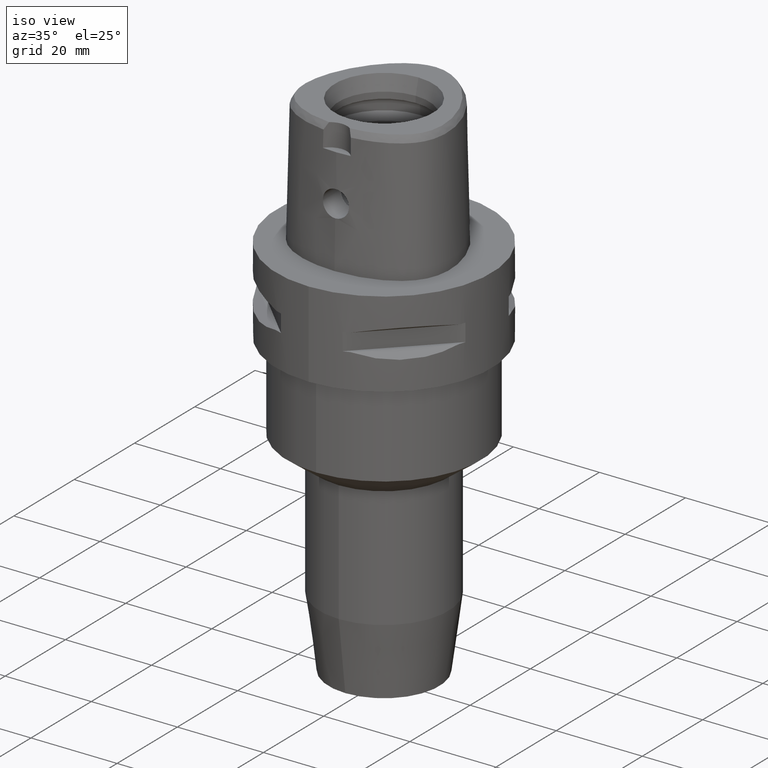
[diagram: clean part render]
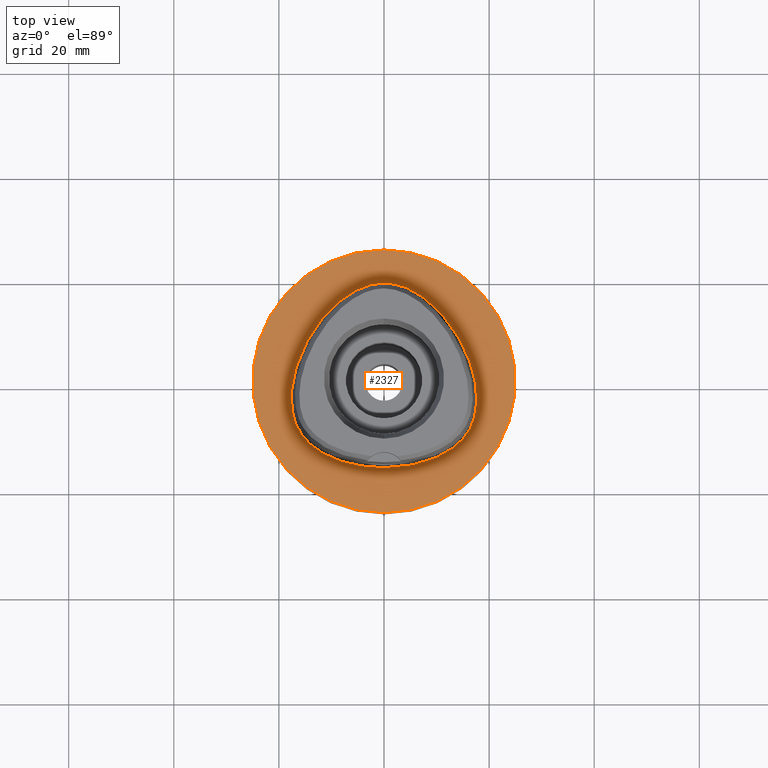
[diagram: tour spotlight — one face highlighted and labeled with its STEP entity id]
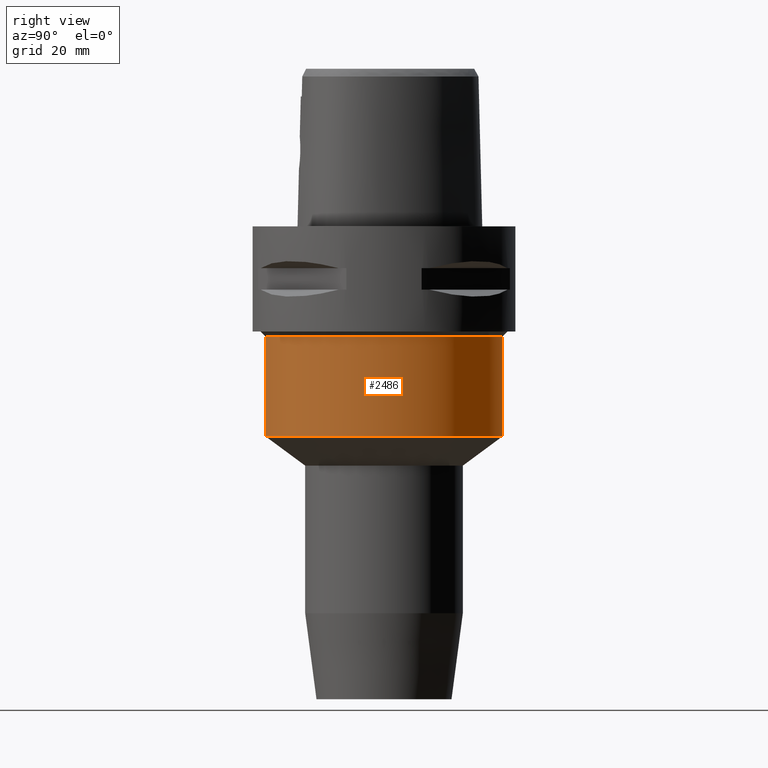
[diagram: tour spotlight — one face highlighted and labeled with its STEP entity id]
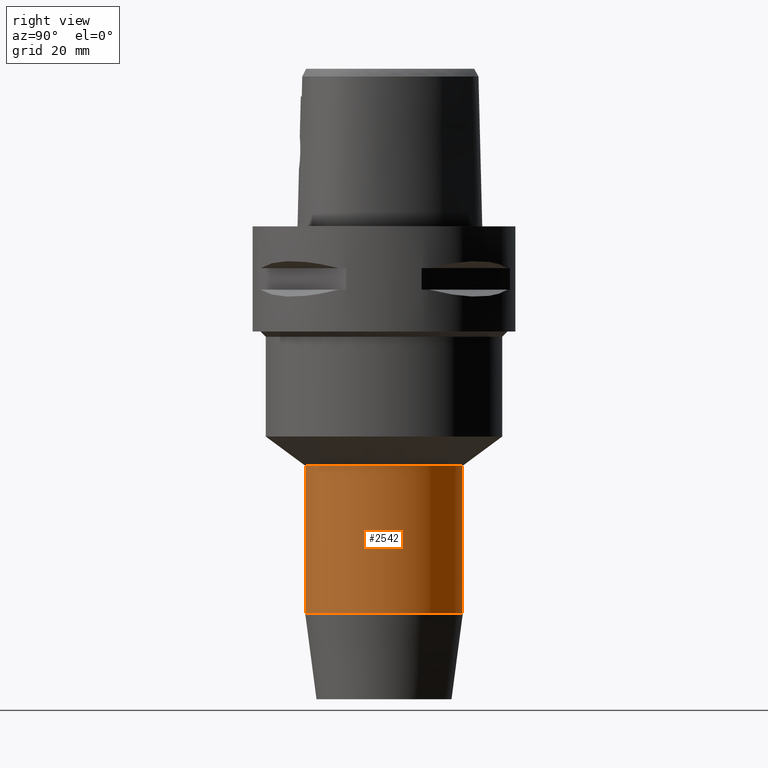
[diagram: tour spotlight — one face highlighted and labeled with its STEP entity id]
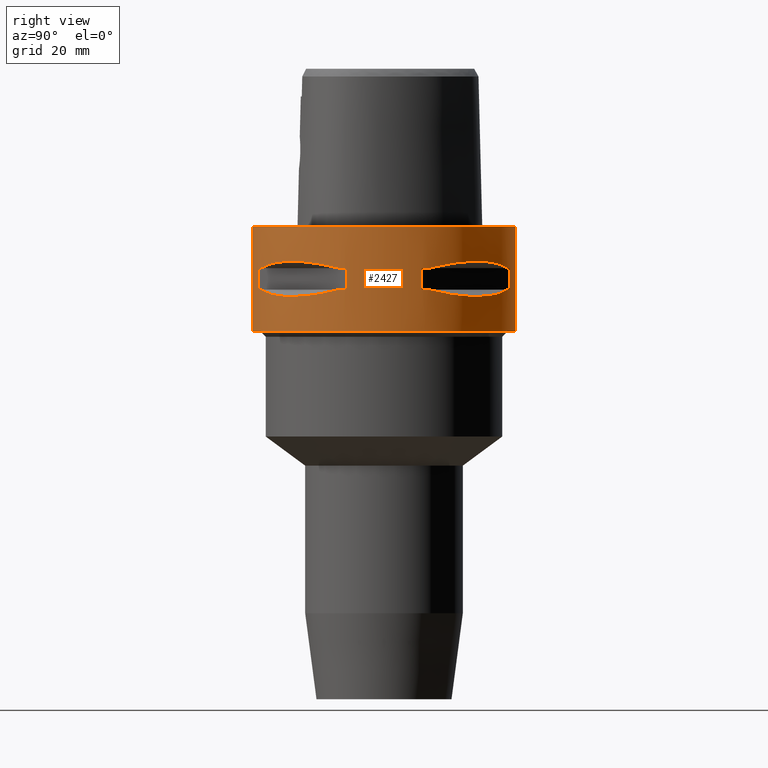
[diagram: tour spotlight — one face highlighted and labeled with its STEP entity id]
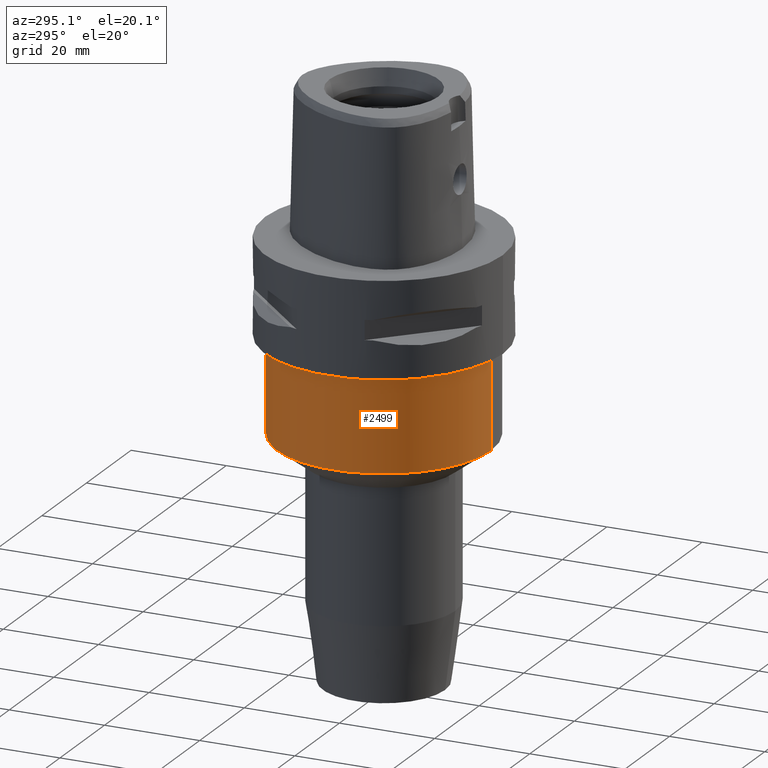
[diagram: tour spotlight — one face highlighted and labeled with its STEP entity id]
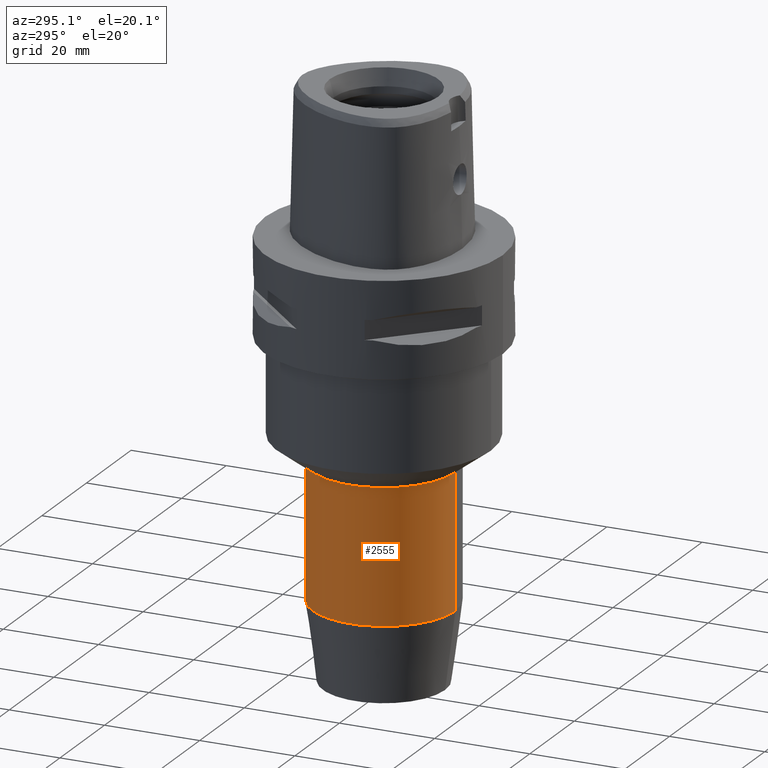
[diagram: tour spotlight — one face highlighted and labeled with its STEP entity id]
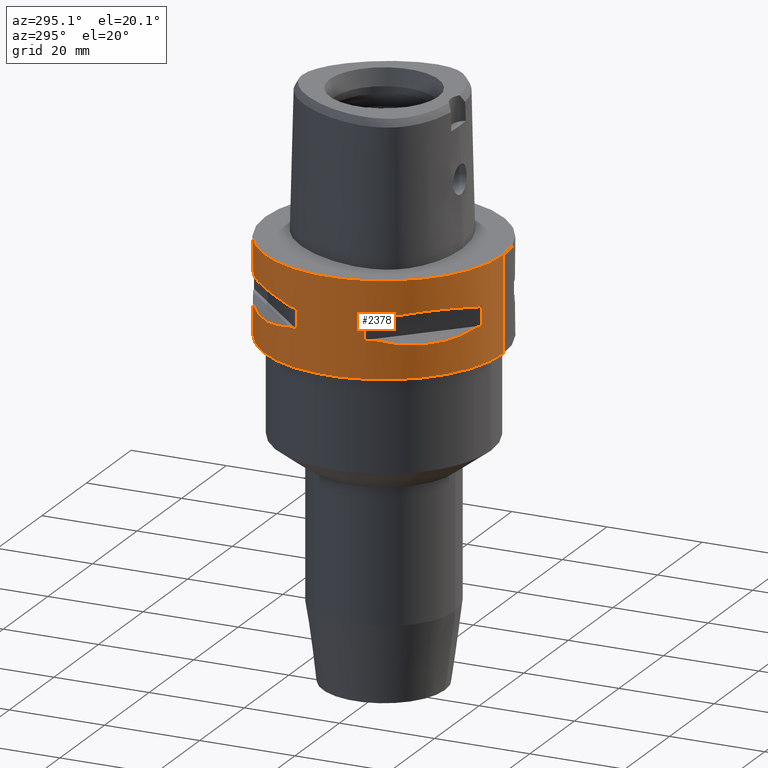
[diagram: tour spotlight — one face highlighted and labeled with its STEP entity id]
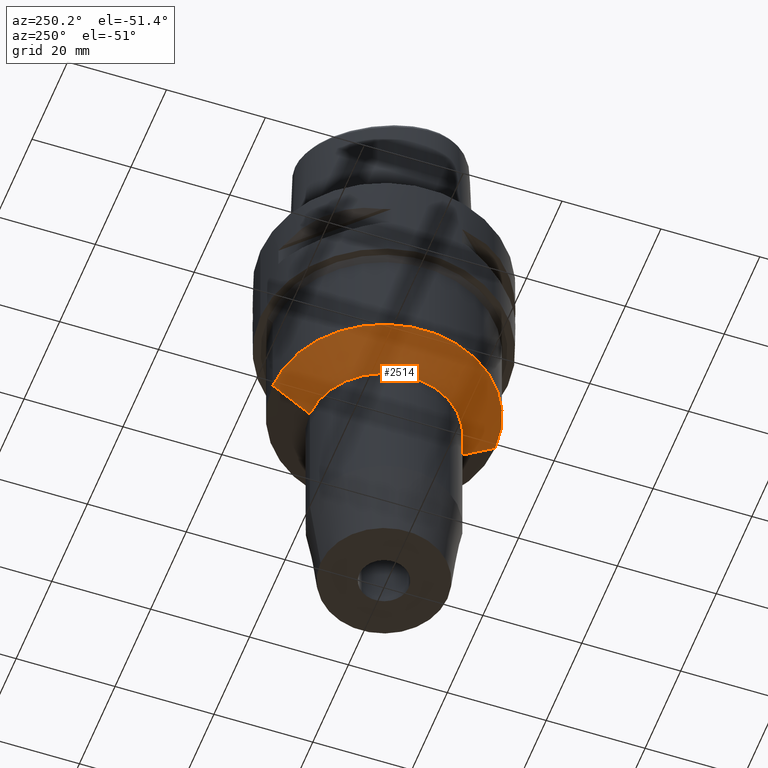
[diagram: tour spotlight — one face highlighted and labeled with its STEP entity id]
A machine part: a face-by-face anatomy tour. The part has 71 B-rep faces; the first image is the clean iso view, then the 8 largest visible faces are spotlighted one at a time (largest first), each with its STEP entity span.

Face 1 — top view, entity #2327. In plain terms, the highlighted planar face has unit normal (0, 0, -1).
Definition (entity closure, byte-faithful):
#276=CARTESIAN_POINT('',(0.E0,1.279755905109E-14,0.E0));
#277=DIRECTION('',(0.E0,0.E0,-1.E0));
#278=DIRECTION('',(0.E0,-1.E0,0.E0));
#279=AXIS2_PLACEMENT_3D('',#276,#277,#278);
#284=CARTESIAN_POINT('',(0.E0,1.279755905109E-14,0.E0));
#285=DIRECTION('',(0.E0,0.E0,-1.E0));
#286=DIRECTION('',(0.E0,1.E0,0.E0));
#287=AXIS2_PLACEMENT_3D('',#284,#285,#286);
#292=CARTESIAN_POINT('',(-1.878577622163E-11,-1.6455E1,1.714184350021E-13));
#293=CARTESIAN_POINT('',(7.520544970775E-1,-1.6455E1,1.714184350021E-13));
#294=CARTESIAN_POINT('',(2.228860586122E0,-1.639617223440E1,
-7.955557254887E-14));
#295=CARTESIAN_POINT('',(4.393897766251E0,-1.613829788532E1,
2.131685141787E-14));
#296=CARTESIAN_POINT('',(6.413582333440E0,-1.573029168066E1,0.E0));
#297=CARTESIAN_POINT('',(8.250040745429E0,-1.519983477269E1,0.E0));
#298=CARTESIAN_POINT('',(9.881537619360E0,-1.457551877177E1,0.E0));
#299=CARTESIAN_POINT('',(1.130626230784E1,-1.388335410763E1,0.E0));
#300=CARTESIAN_POINT('',(1.253549220256E1,-1.314343262176E1,0.E0));
#301=CARTESIAN_POINT('',(1.358591729990E1,-1.237044839573E1,0.E0));
#302=CARTESIAN_POINT('',(1.447686110690E1,-1.157371724318E1,0.E0));
#303=CARTESIAN_POINT('',(1.522827962908E1,-1.075540821107E1,0.E0));
#304=CARTESIAN_POINT('',(1.584997981983E1,-9.925219598291E0,0.E0));
#305=CARTESIAN_POINT('',(1.636712046663E1,-9.064646374572E0,0.E0));
#306=CARTESIAN_POINT('',(1.680111583863E1,-8.137770631661E0,0.E0));
#307=CARTESIAN_POINT('',(1.716028823178E1,-7.114005583873E0,0.E0));
#308=CARTESIAN_POINT('',(1.743519625486E1,-5.982733699389E0,0.E0));
#309=CARTESIAN_POINT('',(1.761454247605E1,-4.729703139032E0,0.E0));
#310=CARTESIAN_POINT('',(1.768211704686E1,-3.341959287542E0,0.E0));
#311=CARTESIAN_POINT('',(1.761782930036E1,-1.810101179913E0,0.E0));
#312=CARTESIAN_POINT('',(1.739895033698E1,-1.317112682474E-1,0.E0));
#313=CARTESIAN_POINT('',(1.700294340726E1,1.683923078633E0,0.E0));
#314=CARTESIAN_POINT('',(1.641230603512E1,3.610562547694E0,0.E0));
#315=CARTESIAN_POINT('',(1.562023043524E1,5.603127656776E0,0.E0));
#316=CARTESIAN_POINT('',(1.463711141431E1,7.597430653142E0,0.E0));
#317=CARTESIAN_POINT('',(1.348989830127E1,9.523895696650E0,0.E0));
#318=CARTESIAN_POINT('',(1.221667832768E1,1.132146060739E1,0.E0));
#319=CARTESIAN_POINT('',(1.086683506859E1,1.293619870250E1,0.E0));
#320=CARTESIAN_POINT('',(9.489324918269E0,1.433502117364E1,0.E0));
#321=CARTESIAN_POINT('',(8.122628878486E0,1.550883912672E1,0.E0));
#322=CARTESIAN_POINT('',(6.794297479735E0,1.646457467801E1,0.E0));
#323=CARTESIAN_POINT('',(5.519689172867E0,1.722004023709E1,0.E0));
#324=CARTESIAN_POINT('',(4.305066834601E0,1.779701779539E1,0.E0));
#325=CARTESIAN_POINT('',(3.150397822612E0,1.821724629736E1,0.E0));
#326=CARTESIAN_POINT('',(2.051175307320E0,1.850000862827E1,2.116958474140E-14));
#327=CARTESIAN_POINT('',(1.002672465136E0,1.866092948852E1,
-7.900596583005E-14));
#328=CARTESIAN_POINT('',(3.294798461533E-1,1.869499999998E1,
1.702341971092E-13));
#329=CARTESIAN_POINT('',(7.755984887578E-11,1.869499999998E1,
1.702341971092E-13));
#334=CARTESIAN_POINT('',(7.755984887578E-11,1.869499999998E1,
1.702341971092E-13));
#335=CARTESIAN_POINT('',(-3.295759186931E-1,1.869499999998E1,
1.702341971092E-13));
#336=CARTESIAN_POINT('',(-1.002941795035E0,1.866091233063E1,
-7.900596583005E-14));
#337=CARTESIAN_POINT('',(-2.051732925927E0,1.849989913349E1,
2.116958474140E-14));
#338=CARTESIAN_POINT('',(-3.151016817687E0,1.821705721996E1,0.E0));
#339=CARTESIAN_POINT('',(-4.305903382544E0,1.779667629778E1,0.E0));
#340=CARTESIAN_POINT('',(-5.520827674724E0,1.721944707481E1,0.E0));
#341=CARTESIAN_POINT('',(-6.795867983990E0,1.646356234537E1,0.E0));
#342=CARTESIAN_POINT('',(-8.124582525850E0,1.550731834414E1,0.E0));
#343=CARTESIAN_POINT('',(-9.491675783515E0,1.433284227771E1,0.E0));
#344=CARTESIAN_POINT('',(-1.086945255546E1,1.293333260558E1,0.E0));
#345=CARTESIAN_POINT('',(-1.221944110055E1,1.131788308487E1,0.E0));
#346=CARTESIAN_POINT('',(-1.349253657379E1,9.519855402023E0,0.E0));
#347=CARTESIAN_POINT('',(-1.463965089053E1,7.592770024477E0,0.E0));
#348=CARTESIAN_POINT('',(-1.562233731693E1,5.598375856198E0,0.E0));
#349=CARTESIAN_POINT('',(-1.641389016506E1,3.606034768388E0,0.E0));
#350=CARTESIAN_POINT('',(-1.700401205855E1,1.679814926123E0,0.E0));
#351=CARTESIAN_POINT('',(-1.739956074894E1,-1.352982755759E-1,0.E0));
#352=CARTESIAN_POINT('',(-1.761806726740E1,-1.812956980727E0,0.E0));
#353=CARTESIAN_POINT('',(-1.768210655685E1,-3.344559877090E0,0.E0));
#354=CARTESIAN_POINT('',(-1.761432762350E1,-4.731965011588E0,0.E0));
#355=CARTESIAN_POINT('',(-1.743477761552E1,-5.984854138534E0,0.E0));
#356=CARTESIAN_POINT('',(-1.715975078674E1,-7.115992938261E0,0.E0));
#357=CARTESIAN_POINT('',(-1.679976177308E1,-8.141029809616E0,0.E0));
#358=CARTESIAN_POINT('',(-1.636704456147E1,-9.064438463957E0,0.E0));
#359=CARTESIAN_POINT('',(-1.585200386670E1,-9.922103224333E0,0.E0));
#360=CARTESIAN_POINT('',(-1.523087197253E1,-1.075232462852E1,0.E0));
#361=CARTESIAN_POINT('',(-1.447948051682E1,-1.157113099391E1,0.E0));
#362=CARTESIAN_POINT('',(-1.358925530666E1,-1.236773986121E1,0.E0));
#363=CARTESIAN_POINT('',(-1.253889987658E1,-1.314117755696E1,0.E0));
#364=CARTESIAN_POINT('',(-1.130992361527E1,-1.388138756268E1,0.E0));
#365=CARTESIAN_POINT('',(-9.884823482977E0,-1.457412199330E1,0.E0));
#366=CARTESIAN_POINT('',(-8.253027961528E0,-1.519886051434E1,0.E0));
#367=CARTESIAN_POINT('',(-6.415740149371E0,-1.572979209410E1,0.E0));
#368=CARTESIAN_POINT('',(-4.395375053772E0,-1.613808320054E1,
2.131685141787E-14));
#369=CARTESIAN_POINT('',(-2.229510005853E0,-1.639614206733E1,
-7.955557254887E-14));
#370=CARTESIAN_POINT('',(-7.522639795559E-1,-1.6455E1,1.714184350021E-13));
#371=CARTESIAN_POINT('',(-1.878577622163E-11,-1.6455E1,1.714184350021E-13));
#1536=VERTEX_POINT('',#334);
#1537=VERTEX_POINT('',#371);
#1542=CARTESIAN_POINT('',(0.E0,-2.5E1,0.E0));
#1543=CARTESIAN_POINT('',(0.E0,2.5E1,0.E0));
#1544=VERTEX_POINT('',#1542);
#1545=VERTEX_POINT('',#1543);
#2311=CARTESIAN_POINT('',(0.E0,1.224646799147E-14,0.E0));
#2312=DIRECTION('',(0.E0,0.E0,-1.E0));
#2313=DIRECTION('',(0.E0,-1.E0,0.E0));
#2314=AXIS2_PLACEMENT_3D('',#2311,#2312,#2313);
#2315=PLANE('',#2314);
#2317=ORIENTED_EDGE('',*,*,#2316,.T.);
#2319=ORIENTED_EDGE('',*,*,#2318,.T.);
#2320=EDGE_LOOP('',(#2317,#2319));
#2321=FACE_OUTER_BOUND('',#2320,.F.);
#2323=ORIENTED_EDGE('',*,*,#2322,.T.);
#2324=ORIENTED_EDGE('',*,*,#2294,.T.);
#2325=EDGE_LOOP('',(#2323,#2324));
#2326=FACE_BOUND('',#2325,.F.);
#280=CIRCLE('',#279,2.5E1);
#288=CIRCLE('',#287,2.5E1);
#330=B_SPLINE_CURVE_WITH_KNOTS('',3,(#292,#293,#294,#295,#296,#297,#298,#299,
#300,#301,#302,#303,#304,#305,#306,#307,#308,#309,#310,#311,#312,#313,#314,#315,
#316,#317,#318,#319,#320,#321,#322,#323,#324,#325,#326,#327,#328,#329),
.UNSPECIFIED.,.F.,.F.,(4,1,1,1,1,1,1,1,1,1,1,1,1,1,1,1,1,1,1,1,1,1,1,1,1,1,1,1,
1,1,1,1,1,1,1,4),(0.E0,2.857142857143E-2,5.714285714286E-2,8.571428571429E-2,
1.142857142857E-1,1.428571428571E-1,1.714285714286E-1,2.E-1,2.285714285714E-1,
2.571428571429E-1,2.857142857143E-1,3.142857142857E-1,3.428571428571E-1,
3.714285714286E-1,4.E-1,4.285714285714E-1,4.571428571429E-1,4.857142857143E-1,
5.142857142857E-1,5.428571428571E-1,5.714285714286E-1,6.E-1,6.285714285714E-1,
6.571428571429E-1,6.857142857143E-1,7.142857142857E-1,7.428571428571E-1,
7.714285714286E-1,8.E-1,8.285714285714E-1,8.571428571429E-1,8.857142857143E-1,
9.142857142857E-1,9.428571428571E-1,9.714285714286E-1,1.E0),.UNSPECIFIED.);
#372=B_SPLINE_CURVE_WITH_KNOTS('',3,(#334,#335,#336,#337,#338,#339,#340,#341,
#342,#343,#344,#345,#346,#347,#348,#349,#350,#351,#352,#353,#354,#355,#356,#357,
#358,#359,#360,#361,#362,#363,#364,#365,#366,#367,#368,#369,#370,#371),
.UNSPECIFIED.,.F.,.F.,(4,1,1,1,1,1,1,1,1,1,1,1,1,1,1,1,1,1,1,1,1,1,1,1,1,1,1,1,
1,1,1,1,1,1,1,4),(0.E0,2.857142857143E-2,5.714285714286E-2,8.571428571429E-2,
1.142857142857E-1,1.428571428571E-1,1.714285714286E-1,2.E-1,2.285714285714E-1,
2.571428571429E-1,2.857142857143E-1,3.142857142857E-1,3.428571428571E-1,
3.714285714286E-1,4.E-1,4.285714285714E-1,4.571428571429E-1,4.857142857143E-1,
5.142857142857E-1,5.428571428571E-1,5.714285714286E-1,6.E-1,6.285714285714E-1,
6.571428571429E-1,6.857142857143E-1,7.142857142857E-1,7.428571428571E-1,
7.714285714286E-1,8.E-1,8.285714285714E-1,8.571428571429E-1,8.857142857143E-1,
9.142857142857E-1,9.428571428571E-1,9.714285714286E-1,1.E0),.UNSPECIFIED.);
#2294=EDGE_CURVE('',#1536,#1537,#372,.T.);
#2316=EDGE_CURVE('',#1544,#1545,#280,.T.);
#2318=EDGE_CURVE('',#1545,#1544,#288,.T.);
#2322=EDGE_CURVE('',#1537,#1536,#330,.T.);
#2327=ADVANCED_FACE('',(#2321,#2326),#2315,.F.);

Face 2 — right view, entity #2486. In plain terms, the highlighted cylindrical surface (partial cylindrical patch) has radius 22.5 mm, axis along (0, 0, -1).
Definition (entity closure, byte-faithful):
#544=CARTESIAN_POINT('',(0.E0,0.E0,-2.1E1));
#545=DIRECTION('',(0.E0,0.E0,-1.E0));
#546=DIRECTION('',(0.E0,1.E0,0.E0));
#547=AXIS2_PLACEMENT_3D('',#544,#545,#546);
#552=DIRECTION('',(0.E0,7.741231679298E-14,-1.E0));
#553=VECTOR('',#552,1.899986363871E1);
#554=CARTESIAN_POINT('',(0.E0,2.25E1,-2.1E1));
#555=LINE('',#554,#553);
#559=DIRECTION('',(0.E0,-7.741231679298E-14,-1.E0));
#560=VECTOR('',#559,1.899986363871E1);
#561=CARTESIAN_POINT('',(0.E0,-2.25E1,-2.1E1));
#562=LINE('',#561,#560);
#604=CARTESIAN_POINT('',(0.E0,0.E0,-3.999986363871E1));
#605=DIRECTION('',(0.E0,0.E0,1.E0));
#606=DIRECTION('',(0.E0,-1.E0,0.E0));
#607=AXIS2_PLACEMENT_3D('',#604,#605,#606);
#1606=CARTESIAN_POINT('',(0.E0,2.25E1,-2.1E1));
#1607=VERTEX_POINT('',#1606);
#1608=CARTESIAN_POINT('',(0.E0,-2.25E1,-2.1E1));
#1609=VERTEX_POINT('',#1608);
#1610=CARTESIAN_POINT('',(0.E0,2.25E1,-3.999986363871E1));
#1611=VERTEX_POINT('',#1610);
#1612=CARTESIAN_POINT('',(0.E0,-2.25E1,-3.999986363871E1));
#1613=VERTEX_POINT('',#1612);
#2472=CARTESIAN_POINT('',(0.E0,1.279755905109E-14,4.5E0));
#2473=DIRECTION('',(0.E0,0.E0,-1.E0));
#2474=DIRECTION('',(0.E0,-1.E0,0.E0));
#2475=AXIS2_PLACEMENT_3D('',#2472,#2473,#2474);
#2476=CYLINDRICAL_SURFACE('',#2475,2.25E1);
#2478=ORIENTED_EDGE('',*,*,#2477,.T.);
#2480=ORIENTED_EDGE('',*,*,#2479,.F.);
#2482=ORIENTED_EDGE('',*,*,#2481,.F.);
#2483=ORIENTED_EDGE('',*,*,#2465,.F.);
#2484=EDGE_LOOP('',(#2478,#2480,#2482,#2483));
#2485=FACE_OUTER_BOUND('',#2484,.F.);
#548=CIRCLE('',#547,2.25E1);
#608=CIRCLE('',#607,2.25E1);
#2465=EDGE_CURVE('',#1607,#1609,#548,.T.);
#2477=EDGE_CURVE('',#1607,#1611,#555,.T.);
#2479=EDGE_CURVE('',#1613,#1611,#608,.T.);
#2481=EDGE_CURVE('',#1609,#1613,#562,.T.);
#2486=ADVANCED_FACE('',(#2485),#2476,.T.);

Face 3 — right view, entity #2542. In plain terms, the highlighted cylindrical surface (partial cylindrical patch) has radius 15 mm, axis along (0, 0, -1).
Definition (entity closure, byte-faithful):
#596=CARTESIAN_POINT('',(0.E0,0.E0,-4.5535E1));
#597=DIRECTION('',(0.E0,0.E0,-1.E0));
#598=DIRECTION('',(0.E0,1.E0,0.E0));
#599=AXIS2_PLACEMENT_3D('',#596,#597,#598);
#612=DIRECTION('',(0.E0,-1.668893513746E-14,-1.E0));
#613=VECTOR('',#612,2.809994776413E1);
#614=CARTESIAN_POINT('',(0.E0,1.5E1,-4.5535E1));
#615=LINE('',#614,#613);
#619=DIRECTION('',(0.E0,1.668893513746E-14,-1.E0));
#620=VECTOR('',#619,2.809994776413E1);
#621=CARTESIAN_POINT('',(0.E0,-1.5E1,-4.5535E1));
#622=LINE('',#621,#620);
#648=CARTESIAN_POINT('',(0.E0,0.E0,-7.363494776413E1));
#649=DIRECTION('',(0.E0,0.E0,1.E0));
#650=DIRECTION('',(0.E0,-1.E0,0.E0));
#651=AXIS2_PLACEMENT_3D('',#648,#649,#650);
#1614=CARTESIAN_POINT('',(0.E0,1.5E1,-4.5535E1));
#1615=VERTEX_POINT('',#1614);
#1616=CARTESIAN_POINT('',(0.E0,-1.5E1,-4.5535E1));
#1617=VERTEX_POINT('',#1616);
#1618=CARTESIAN_POINT('',(0.E0,1.5E1,-7.363494776413E1));
#1619=VERTEX_POINT('',#1618);
#1620=CARTESIAN_POINT('',(0.E0,-1.5E1,-7.363494776413E1));
#1621=VERTEX_POINT('',#1620);
#2528=CARTESIAN_POINT('',(0.E0,1.279755905109E-14,4.5E0));
#2529=DIRECTION('',(0.E0,0.E0,-1.E0));
#2530=DIRECTION('',(0.E0,-1.E0,0.E0));
#2531=AXIS2_PLACEMENT_3D('',#2528,#2529,#2530);
#2532=CYLINDRICAL_SURFACE('',#2531,1.5E1);
#2534=ORIENTED_EDGE('',*,*,#2533,.T.);
#2536=ORIENTED_EDGE('',*,*,#2535,.F.);
#2538=ORIENTED_EDGE('',*,*,#2537,.F.);
#2539=ORIENTED_EDGE('',*,*,#2521,.F.);
#2540=EDGE_LOOP('',(#2534,#2536,#2538,#2539));
#2541=FACE_OUTER_BOUND('',#2540,.F.);
#600=CIRCLE('',#599,1.5E1);
#652=CIRCLE('',#651,1.5E1);
#2521=EDGE_CURVE('',#1615,#1617,#600,.T.);
#2533=EDGE_CURVE('',#1615,#1619,#615,.T.);
#2535=EDGE_CURVE('',#1621,#1619,#652,.T.);
#2537=EDGE_CURVE('',#1617,#1621,#622,.T.);
#2542=ADVANCED_FACE('',(#2541),#2532,.T.);

Face 4 — right view, entity #2427. In plain terms, the highlighted cylindrical surface (partial cylindrical patch) has radius 25 mm, axis along (0, 0, -1).
Definition (entity closure, byte-faithful):
#284=CARTESIAN_POINT('',(0.E0,1.279755905109E-14,0.E0));
#285=DIRECTION('',(0.E0,0.E0,-1.E0));
#286=DIRECTION('',(0.E0,1.E0,0.E0));
#287=AXIS2_PLACEMENT_3D('',#284,#285,#286);
#376=DIRECTION('',(0.E0,0.E0,-1.E0));
#377=VECTOR('',#376,2.E1);
#378=CARTESIAN_POINT('',(0.E0,-2.5E1,0.E0));
#379=LINE('',#378,#377);
#433=DIRECTION('',(0.E0,0.E0,-1.E0));
#434=VECTOR('',#433,2.E1);
#435=CARTESIAN_POINT('',(0.E0,2.5E1,0.E0));
#436=LINE('',#435,#434);
#440=DIRECTION('',(0.E0,0.E0,-1.E0));
#441=VECTOR('',#440,4.1E0);
#442=CARTESIAN_POINT('',(7.159921374231E0,-2.395277699798E1,-7.95E0));
#443=LINE('',#442,#441);
#447=CARTESIAN_POINT('',(8.646484890752E0,-2.345715880140E1,-1.205E1));
#448=CARTESIAN_POINT('',(1.045010326509E1,-2.279233152396E1,-1.251490951850E1));
#449=CARTESIAN_POINT('',(1.371898848499E1,-2.112432544032E1,-1.316846568912E1));
#450=CARTESIAN_POINT('',(1.780567581317E1,-1.780567581317E1,-1.348201576758E1));
#451=CARTESIAN_POINT('',(2.112432544032E1,-1.371898848499E1,-1.316846568912E1));
#452=CARTESIAN_POINT('',(2.279233152396E1,-1.045010326509E1,-1.251490951850E1));
#453=CARTESIAN_POINT('',(2.345715880140E1,-8.646484890752E0,-1.205E1));
#458=DIRECTION('',(0.E0,0.E0,1.E0));
#459=VECTOR('',#458,4.1E0);
#460=CARTESIAN_POINT('',(2.395277699798E1,-7.159921374231E0,-1.205E1));
#461=LINE('',#460,#459);
#465=DIRECTION('',(0.E0,0.E0,-1.E0));
#466=VECTOR('',#465,4.1E0);
#467=CARTESIAN_POINT('',(2.395277699798E1,7.159921374231E0,-7.95E0));
#468=LINE('',#467,#466);
#472=CARTESIAN_POINT('',(2.345715880140E1,8.646484890752E0,-1.205E1));
#473=CARTESIAN_POINT('',(2.279233152396E1,1.045010326509E1,-1.251490951850E1));
#474=CARTESIAN_POINT('',(2.112432544032E1,1.371898848499E1,-1.316846568912E1));
#475=CARTESIAN_POINT('',(1.780567581317E1,1.780567581317E1,-1.348201576758E1));
#476=CARTESIAN_POINT('',(1.371898848499E1,2.112432544032E1,-1.316846568912E1));
#477=CARTESIAN_POINT('',(1.045010326509E1,2.279233152396E1,-1.251490951850E1));
#478=CARTESIAN_POINT('',(8.646484890752E0,2.345715880140E1,-1.205E1));
#483=DIRECTION('',(0.E0,0.E0,1.E0));
#484=VECTOR('',#483,4.1E0);
#485=CARTESIAN_POINT('',(7.159921374231E0,2.395277699798E1,-1.205E1));
#486=LINE('',#485,#484);
#490=CARTESIAN_POINT('',(0.E0,1.279755905109E-14,-2.E1));
#491=DIRECTION('',(0.E0,0.E0,1.E0));
#492=DIRECTION('',(0.E0,-1.E0,0.E0));
#493=AXIS2_PLACEMENT_3D('',#490,#491,#492);
#1236=CARTESIAN_POINT('',(8.646484890752E0,-2.345715880140E1,
-7.949999999999E0));
#1237=CARTESIAN_POINT('',(1.045010326509E1,-2.279233152396E1,
-7.485090481496E0));
#1238=CARTESIAN_POINT('',(1.371898848499E1,-2.112432544032E1,
-6.831534310876E0));
#1239=CARTESIAN_POINT('',(1.780567581317E1,-1.780567581317E1,
-6.517984232422E0));
#1240=CARTESIAN_POINT('',(2.112432544032E1,-1.371898848499E1,
-6.831534310876E0));
#1241=CARTESIAN_POINT('',(2.279233152396E1,-1.045010326509E1,
-7.485090481496E0));
#1242=CARTESIAN_POINT('',(2.345715880140E1,-8.646484890752E0,
-7.949999999999E0));
#1247=CARTESIAN_POINT('',(0.E0,1.279755905109E-14,-7.95E0));
#1248=DIRECTION('',(0.E0,0.E0,1.E0));
#1249=DIRECTION('',(9.382863520558E-1,-3.458593956303E-1,0.E0));
#1250=AXIS2_PLACEMENT_3D('',#1247,#1248,#1249);
#1255=CARTESIAN_POINT('',(0.E0,1.279755905109E-14,-7.95E0));
#1256=DIRECTION('',(0.E0,0.E0,1.E0));
#1257=DIRECTION('',(2.863968549694E-1,-9.581110799190E-1,0.E0));
#1258=AXIS2_PLACEMENT_3D('',#1255,#1256,#1257);
#1277=CARTESIAN_POINT('',(0.E0,1.279755905109E-14,-1.205E1));
#1278=DIRECTION('',(0.E0,0.E0,-1.E0));
#1279=DIRECTION('',(9.581110799190E-1,-2.863968549694E-1,0.E0));
#1280=AXIS2_PLACEMENT_3D('',#1277,#1278,#1279);
#1285=CARTESIAN_POINT('',(0.E0,1.279755905109E-14,-1.205E1));
#1286=DIRECTION('',(0.E0,0.E0,-1.E0));
#1287=DIRECTION('',(3.458593956303E-1,-9.382863520558E-1,0.E0));
#1288=AXIS2_PLACEMENT_3D('',#1285,#1286,#1287);
#1307=CARTESIAN_POINT('',(2.345715880140E1,8.646484890752E0,-7.949999999999E0));
#1308=CARTESIAN_POINT('',(2.279233152396E1,1.045010326509E1,-7.485090481496E0));
#1309=CARTESIAN_POINT('',(2.112432544032E1,1.371898848499E1,-6.831534310876E0));
#1310=CARTESIAN_POINT('',(1.780567581317E1,1.780567581317E1,-6.517984232422E0));
#1311=CARTESIAN_POINT('',(1.371898848499E1,2.112432544032E1,-6.831534310876E0));
#1312=CARTESIAN_POINT('',(1.045010326509E1,2.279233152396E1,-7.485090481496E0));
#1313=CARTESIAN_POINT('',(8.646484890752E0,2.345715880140E1,-7.949999999999E0));
#1318=CARTESIAN_POINT('',(0.E0,1.279755905109E-14,-7.95E0));
#1319=DIRECTION('',(0.E0,0.E0,1.E0));
#1320=DIRECTION('',(3.458593956303E-1,9.382863520558E-1,0.E0));
#1321=AXIS2_PLACEMENT_3D('',#1318,#1319,#1320);
#1326=CARTESIAN_POINT('',(0.E0,1.279755905109E-14,-7.95E0));
#1327=DIRECTION('',(0.E0,0.E0,1.E0));
#1328=DIRECTION('',(9.581110799190E-1,2.863968549694E-1,0.E0));
#1329=AXIS2_PLACEMENT_3D('',#1326,#1327,#1328);
#1348=CARTESIAN_POINT('',(0.E0,1.279755905109E-14,-1.205E1));
#1349=DIRECTION('',(0.E0,0.E0,-1.E0));
#1350=DIRECTION('',(2.863968549694E-1,9.581110799190E-1,0.E0));
#1351=AXIS2_PLACEMENT_3D('',#1348,#1349,#1350);
#1356=CARTESIAN_POINT('',(0.E0,1.279755905109E-14,-1.205E1));
#1357=DIRECTION('',(0.E0,0.E0,-1.E0));
#1358=DIRECTION('',(9.382863520558E-1,3.458593956303E-1,0.E0));
#1359=AXIS2_PLACEMENT_3D('',#1356,#1357,#1358);
#1542=CARTESIAN_POINT('',(0.E0,-2.5E1,0.E0));
#1543=CARTESIAN_POINT('',(0.E0,2.5E1,0.E0));
#1544=VERTEX_POINT('',#1542);
#1545=VERTEX_POINT('',#1543);
#1546=CARTESIAN_POINT('',(0.E0,2.5E1,-2.E1));
#1547=VERTEX_POINT('',#1546);
#1548=CARTESIAN_POINT('',(0.E0,-2.5E1,-2.E1));
#1549=VERTEX_POINT('',#1548);
#1576=VERTEX_POINT('',#1236);
#1577=VERTEX_POINT('',#1242);
#1578=CARTESIAN_POINT('',(7.159921374235E0,-2.395277699798E1,-7.95E0));
#1579=VERTEX_POINT('',#1578);
#1580=CARTESIAN_POINT('',(7.159921374231E0,-2.395277699798E1,-1.205E1));
#1581=VERTEX_POINT('',#1580);
#1582=CARTESIAN_POINT('',(8.646484890757E0,-2.345715880140E1,-1.205E1));
#1583=VERTEX_POINT('',#1582);
#1584=VERTEX_POINT('',#453);
#1585=CARTESIAN_POINT('',(2.395277699798E1,-7.159921374235E0,-1.205E1));
#1586=VERTEX_POINT('',#1585);
#1587=CARTESIAN_POINT('',(2.395277699798E1,-7.159921374231E0,-7.95E0));
#1588=VERTEX_POINT('',#1587);
#1589=VERTEX_POINT('',#1307);
#1590=VERTEX_POINT('',#1313);
#1591=CARTESIAN_POINT('',(2.395277699798E1,7.159921374235E0,-7.95E0));
#1592=VERTEX_POINT('',#1591);
#1593=CARTESIAN_POINT('',(2.395277699798E1,7.159921374231E0,-1.205E1));
#1594=VERTEX_POINT('',#1593);
#1595=CARTESIAN_POINT('',(2.345715880140E1,8.646484890757E0,-1.205E1));
#1596=VERTEX_POINT('',#1595);
#1597=VERTEX_POINT('',#478);
#1598=CARTESIAN_POINT('',(7.159921374235E0,2.395277699798E1,-1.205E1));
#1599=VERTEX_POINT('',#1598);
#1600=CARTESIAN_POINT('',(7.159921374231E0,2.395277699798E1,-7.95E0));
#1601=VERTEX_POINT('',#1600);
#2379=CARTESIAN_POINT('',(0.E0,1.279755905109E-14,4.5E0));
#2380=DIRECTION('',(0.E0,0.E0,-1.E0));
#2381=DIRECTION('',(0.E0,-1.E0,0.E0));
#2382=AXIS2_PLACEMENT_3D('',#2379,#2380,#2381);
#2383=CYLINDRICAL_SURFACE('',#2382,2.5E1);
#2384=ORIENTED_EDGE('',*,*,#2333,.T.);
#2386=ORIENTED_EDGE('',*,*,#2385,.F.);
#2387=ORIENTED_EDGE('',*,*,#2336,.F.);
#2388=ORIENTED_EDGE('',*,*,#2318,.F.);
#2389=EDGE_LOOP('',(#2384,#2386,#2387,#2388));
#2390=FACE_OUTER_BOUND('',#2389,.F.);
#2392=ORIENTED_EDGE('',*,*,#2391,.F.);
#2394=ORIENTED_EDGE('',*,*,#2393,.F.);
#2396=ORIENTED_EDGE('',*,*,#2395,.T.);
#2398=ORIENTED_EDGE('',*,*,#2397,.F.);
#2400=ORIENTED_EDGE('',*,*,#2399,.T.);
#2402=ORIENTED_EDGE('',*,*,#2401,.F.);
#2404=ORIENTED_EDGE('',*,*,#2403,.T.);
#2406=ORIENTED_EDGE('',*,*,#2405,.F.);
#2407=EDGE_LOOP('',(#2392,#2394,#2396,#2398,#2400,#2402,#2404,#2406));
#2408=FACE_BOUND('',#2407,.F.);
#2410=ORIENTED_EDGE('',*,*,#2409,.F.);
#2412=ORIENTED_EDGE('',*,*,#2411,.F.);
#2414=ORIENTED_EDGE('',*,*,#2413,.T.);
#2416=ORIENTED_EDGE('',*,*,#2415,.F.);
#2418=ORIENTED_EDGE('',*,*,#2417,.T.);
#2420=ORIENTED_EDGE('',*,*,#2419,.F.);
#2422=ORIENTED_EDGE('',*,*,#2421,.T.);
#2424=ORIENTED_EDGE('',*,*,#2423,.F.);
#2425=EDGE_LOOP('',(#2410,#2412,#2414,#2416,#2418,#2420,#2422,#2424));
#2426=FACE_BOUND('',#2425,.F.);
#288=CIRCLE('',#287,2.5E1);
#454=B_SPLINE_CURVE_WITH_KNOTS('',3,(#447,#448,#449,#450,#451,#452,#453),
.UNSPECIFIED.,.F.,.F.,(4,1,1,1,4),(0.E0,2.5E-1,5.E-1,7.5E-1,1.E0),
.UNSPECIFIED.);
#479=B_SPLINE_CURVE_WITH_KNOTS('',3,(#472,#473,#474,#475,#476,#477,#478),
.UNSPECIFIED.,.F.,.F.,(4,1,1,1,4),(0.E0,2.5E-1,5.E-1,7.5E-1,1.E0),
.UNSPECIFIED.);
#494=CIRCLE('',#493,2.5E1);
#1243=B_SPLINE_CURVE_WITH_KNOTS('',3,(#1236,#1237,#1238,#1239,#1240,#1241,
#1242),.UNSPECIFIED.,.F.,.F.,(4,1,1,1,4),(0.E0,2.5E-1,5.E-1,7.5E-1,1.E0),
.UNSPECIFIED.);
#1251=CIRCLE('',#1250,2.5E1);
#1259=CIRCLE('',#1258,2.5E1);
#1281=CIRCLE('',#1280,2.5E1);
#1289=CIRCLE('',#1288,2.5E1);
#1314=B_SPLINE_CURVE_WITH_KNOTS('',3,(#1307,#1308,#1309,#1310,#1311,#1312,
#1313),.UNSPECIFIED.,.F.,.F.,(4,1,1,1,4),(0.E0,2.5E-1,5.E-1,7.5E-1,1.E0),
.UNSPECIFIED.);
#1322=CIRCLE('',#1321,2.5E1);
#1330=CIRCLE('',#1329,2.5E1);
#1352=CIRCLE('',#1351,2.5E1);
#1360=CIRCLE('',#1359,2.5E1);
#2318=EDGE_CURVE('',#1545,#1544,#288,.T.);
#2333=EDGE_CURVE('',#1545,#1547,#436,.T.);
#2336=EDGE_CURVE('',#1544,#1549,#379,.T.);
#2385=EDGE_CURVE('',#1549,#1547,#494,.T.);
#2391=EDGE_CURVE('',#1576,#1577,#1243,.T.);
#2393=EDGE_CURVE('',#1579,#1576,#1259,.T.);
#2395=EDGE_CURVE('',#1579,#1581,#443,.T.);
#2397=EDGE_CURVE('',#1583,#1581,#1289,.T.);
#2399=EDGE_CURVE('',#1583,#1584,#454,.T.);
#2401=EDGE_CURVE('',#1586,#1584,#1281,.T.);
#2403=EDGE_CURVE('',#1586,#1588,#461,.T.);
#2405=EDGE_CURVE('',#1577,#1588,#1251,.T.);
#2409=EDGE_CURVE('',#1589,#1590,#1314,.T.);
#2411=EDGE_CURVE('',#1592,#1589,#1330,.T.);
#2413=EDGE_CURVE('',#1592,#1594,#468,.T.);
#2415=EDGE_CURVE('',#1596,#1594,#1360,.T.);
#2417=EDGE_CURVE('',#1596,#1597,#479,.T.);
#2419=EDGE_CURVE('',#1599,#1597,#1352,.T.);
#2421=EDGE_CURVE('',#1599,#1601,#486,.T.);
#2423=EDGE_CURVE('',#1590,#1601,#1322,.T.);
#2427=ADVANCED_FACE('',(#2390,#2408,#2426),#2383,.T.);

Face 5 — auxiliary view, entity #2499. In plain terms, the highlighted cylindrical surface (partial cylindrical patch) has radius 22.5 mm, axis along (0, 0, -1).
Definition (entity closure, byte-faithful):
#529=CARTESIAN_POINT('',(0.E0,0.E0,-2.1E1));
#530=DIRECTION('',(0.E0,0.E0,-1.E0));
#531=DIRECTION('',(0.E0,-1.E0,0.E0));
#532=AXIS2_PLACEMENT_3D('',#529,#530,#531);
#552=DIRECTION('',(0.E0,7.741231679298E-14,-1.E0));
#553=VECTOR('',#552,1.899986363871E1);
#554=CARTESIAN_POINT('',(0.E0,2.25E1,-2.1E1));
#555=LINE('',#554,#553);
#559=DIRECTION('',(0.E0,-7.741231679298E-14,-1.E0));
#560=VECTOR('',#559,1.899986363871E1);
#561=CARTESIAN_POINT('',(0.E0,-2.25E1,-2.1E1));
#562=LINE('',#561,#560);
#566=CARTESIAN_POINT('',(0.E0,0.E0,-3.999986363871E1));
#567=DIRECTION('',(0.E0,0.E0,1.E0));
#568=DIRECTION('',(0.E0,1.E0,0.E0));
#569=AXIS2_PLACEMENT_3D('',#566,#567,#568);
#1606=CARTESIAN_POINT('',(0.E0,2.25E1,-2.1E1));
#1607=VERTEX_POINT('',#1606);
#1608=CARTESIAN_POINT('',(0.E0,-2.25E1,-2.1E1));
#1609=VERTEX_POINT('',#1608);
#1610=CARTESIAN_POINT('',(0.E0,2.25E1,-3.999986363871E1));
#1611=VERTEX_POINT('',#1610);
#1612=CARTESIAN_POINT('',(0.E0,-2.25E1,-3.999986363871E1));
#1613=VERTEX_POINT('',#1612);
#2487=CARTESIAN_POINT('',(0.E0,1.279755905109E-14,4.5E0));
#2488=DIRECTION('',(0.E0,0.E0,-1.E0));
#2489=DIRECTION('',(0.E0,-1.E0,0.E0));
#2490=AXIS2_PLACEMENT_3D('',#2487,#2488,#2489);
#2491=CYLINDRICAL_SURFACE('',#2490,2.25E1);
#2492=ORIENTED_EDGE('',*,*,#2477,.F.);
#2493=ORIENTED_EDGE('',*,*,#2454,.F.);
#2494=ORIENTED_EDGE('',*,*,#2481,.T.);
#2496=ORIENTED_EDGE('',*,*,#2495,.F.);
#2497=EDGE_LOOP('',(#2492,#2493,#2494,#2496));
#2498=FACE_OUTER_BOUND('',#2497,.F.);
#533=CIRCLE('',#532,2.25E1);
#570=CIRCLE('',#569,2.25E1);
#2454=EDGE_CURVE('',#1609,#1607,#533,.T.);
#2477=EDGE_CURVE('',#1607,#1611,#555,.T.);
#2481=EDGE_CURVE('',#1609,#1613,#562,.T.);
#2495=EDGE_CURVE('',#1611,#1613,#570,.T.);
#2499=ADVANCED_FACE('',(#2498),#2491,.T.);

Face 6 — auxiliary view, entity #2555. In plain terms, the highlighted cylindrical surface (partial cylindrical patch) has radius 15 mm, axis along (0, 0, -1).
Definition (entity closure, byte-faithful):
#581=CARTESIAN_POINT('',(0.E0,0.E0,-4.5535E1));
#582=DIRECTION('',(0.E0,0.E0,-1.E0));
#583=DIRECTION('',(0.E0,-1.E0,0.E0));
#584=AXIS2_PLACEMENT_3D('',#581,#582,#583);
#612=DIRECTION('',(0.E0,-1.668893513746E-14,-1.E0));
#613=VECTOR('',#612,2.809994776413E1);
#614=CARTESIAN_POINT('',(0.E0,1.5E1,-4.5535E1));
#615=LINE('',#614,#613);
#619=DIRECTION('',(0.E0,1.668893513746E-14,-1.E0));
#620=VECTOR('',#619,2.809994776413E1);
#621=CARTESIAN_POINT('',(0.E0,-1.5E1,-4.5535E1));
#622=LINE('',#621,#620);
#626=CARTESIAN_POINT('',(0.E0,0.E0,-7.363494776413E1));
#627=DIRECTION('',(0.E0,0.E0,1.E0));
#628=DIRECTION('',(0.E0,1.E0,0.E0));
#629=AXIS2_PLACEMENT_3D('',#626,#627,#628);
#1614=CARTESIAN_POINT('',(0.E0,1.5E1,-4.5535E1));
#1615=VERTEX_POINT('',#1614);
#1616=CARTESIAN_POINT('',(0.E0,-1.5E1,-4.5535E1));
#1617=VERTEX_POINT('',#1616);
#1618=CARTESIAN_POINT('',(0.E0,1.5E1,-7.363494776413E1));
#1619=VERTEX_POINT('',#1618);
#1620=CARTESIAN_POINT('',(0.E0,-1.5E1,-7.363494776413E1));
#1621=VERTEX_POINT('',#1620);
#2543=CARTESIAN_POINT('',(0.E0,1.279755905109E-14,4.5E0));
#2544=DIRECTION('',(0.E0,0.E0,-1.E0));
#2545=DIRECTION('',(0.E0,-1.E0,0.E0));
#2546=AXIS2_PLACEMENT_3D('',#2543,#2544,#2545);
#2547=CYLINDRICAL_SURFACE('',#2546,1.5E1);
#2548=ORIENTED_EDGE('',*,*,#2533,.F.);
#2549=ORIENTED_EDGE('',*,*,#2510,.F.);
#2550=ORIENTED_EDGE('',*,*,#2537,.T.);
#2552=ORIENTED_EDGE('',*,*,#2551,.F.);
#2553=EDGE_LOOP('',(#2548,#2549,#2550,#2552));
#2554=FACE_OUTER_BOUND('',#2553,.F.);
#585=CIRCLE('',#584,1.5E1);
#630=CIRCLE('',#629,1.5E1);
#2510=EDGE_CURVE('',#1617,#1615,#585,.T.);
#2533=EDGE_CURVE('',#1615,#1619,#615,.T.);
#2537=EDGE_CURVE('',#1617,#1621,#622,.T.);
#2551=EDGE_CURVE('',#1619,#1621,#630,.T.);
#2555=ADVANCED_FACE('',(#2554),#2547,.T.);

Face 7 — auxiliary view, entity #2378. In plain terms, the highlighted cylindrical surface (partial cylindrical patch) has radius 25 mm, axis along (0, 0, -1).
Definition (entity closure, byte-faithful):
#276=CARTESIAN_POINT('',(0.E0,1.279755905109E-14,0.E0));
#277=DIRECTION('',(0.E0,0.E0,-1.E0));
#278=DIRECTION('',(0.E0,-1.E0,0.E0));
#279=AXIS2_PLACEMENT_3D('',#276,#277,#278);
#376=DIRECTION('',(0.E0,0.E0,-1.E0));
#377=VECTOR('',#376,2.E1);
#378=CARTESIAN_POINT('',(0.E0,-2.5E1,0.E0));
#379=LINE('',#378,#377);
#383=DIRECTION('',(0.E0,0.E0,-1.E0));
#384=VECTOR('',#383,4.1E0);
#385=CARTESIAN_POINT('',(-7.159921374231E0,2.395277699798E1,-7.95E0));
#386=LINE('',#385,#384);
#390=CARTESIAN_POINT('',(-8.646484890752E0,2.345715880140E1,-1.205E1));
#391=CARTESIAN_POINT('',(-1.045010326509E1,2.279233152396E1,-1.251490951850E1));
#392=CARTESIAN_POINT('',(-1.371898848499E1,2.112432544032E1,-1.316846568912E1));
#393=CARTESIAN_POINT('',(-1.780567581317E1,1.780567581317E1,-1.348201576758E1));
#394=CARTESIAN_POINT('',(-2.112432544032E1,1.371898848499E1,-1.316846568912E1));
#395=CARTESIAN_POINT('',(-2.279233152396E1,1.045010326509E1,-1.251490951850E1));
#396=CARTESIAN_POINT('',(-2.345715880140E1,8.646484890752E0,-1.205E1));
#401=DIRECTION('',(0.E0,0.E0,1.E0));
#402=VECTOR('',#401,4.1E0);
#403=CARTESIAN_POINT('',(-2.395277699798E1,7.159921374231E0,-1.205E1));
#404=LINE('',#403,#402);
#408=DIRECTION('',(0.E0,0.E0,-1.E0));
#409=VECTOR('',#408,4.1E0);
#410=CARTESIAN_POINT('',(-2.395277699798E1,-7.159921374231E0,-7.95E0));
#411=LINE('',#410,#409);
#415=CARTESIAN_POINT('',(-2.345715880140E1,-8.646484890752E0,-1.205E1));
#416=CARTESIAN_POINT('',(-2.279233152396E1,-1.045010326509E1,
-1.251490951850E1));
#417=CARTESIAN_POINT('',(-2.112432544032E1,-1.371898848499E1,
-1.316846568912E1));
#418=CARTESIAN_POINT('',(-1.780567581317E1,-1.780567581317E1,
-1.348201576758E1));
#419=CARTESIAN_POINT('',(-1.371898848499E1,-2.112432544032E1,
-1.316846568912E1));
#420=CARTESIAN_POINT('',(-1.045010326509E1,-2.279233152396E1,
-1.251490951850E1));
#421=CARTESIAN_POINT('',(-8.646484890752E0,-2.345715880140E1,-1.205E1));
#426=DIRECTION('',(0.E0,0.E0,1.E0));
#427=VECTOR('',#426,4.1E0);
#428=CARTESIAN_POINT('',(-7.159921374231E0,-2.395277699798E1,-1.205E1));
#429=LINE('',#428,#427);
#433=DIRECTION('',(0.E0,0.E0,-1.E0));
#434=VECTOR('',#433,2.E1);
#435=CARTESIAN_POINT('',(0.E0,2.5E1,0.E0));
#436=LINE('',#435,#434);
#498=CARTESIAN_POINT('',(0.E0,1.279755905109E-14,-2.E1));
#499=DIRECTION('',(0.E0,0.E0,1.E0));
#500=DIRECTION('',(0.E0,1.E0,0.E0));
#501=AXIS2_PLACEMENT_3D('',#498,#499,#500);
#1378=CARTESIAN_POINT('',(-8.646484890752E0,2.345715880140E1,
-7.949999999999E0));
#1379=CARTESIAN_POINT('',(-1.045010326509E1,2.279233152396E1,
-7.485090481495E0));
#1380=CARTESIAN_POINT('',(-1.371898848499E1,2.112432544032E1,
-6.831534310876E0));
#1381=CARTESIAN_POINT('',(-1.780567581317E1,1.780567581317E1,
-6.517984232422E0));
#1382=CARTESIAN_POINT('',(-2.112432544032E1,1.371898848499E1,
-6.831534310876E0));
#1383=CARTESIAN_POINT('',(-2.279233152396E1,1.045010326509E1,
-7.485090481496E0));
#1384=CARTESIAN_POINT('',(-2.345715880140E1,8.646484890752E0,
-7.949999999999E0));
#1389=CARTESIAN_POINT('',(0.E0,1.279755905109E-14,-7.95E0));
#1390=DIRECTION('',(0.E0,0.E0,1.E0));
#1391=DIRECTION('',(-9.382863520558E-1,3.458593956303E-1,0.E0));
#1392=AXIS2_PLACEMENT_3D('',#1389,#1390,#1391);
#1397=CARTESIAN_POINT('',(0.E0,1.279755905109E-14,-7.95E0));
#1398=DIRECTION('',(0.E0,0.E0,1.E0));
#1399=DIRECTION('',(-2.863968549694E-1,9.581110799190E-1,0.E0));
#1400=AXIS2_PLACEMENT_3D('',#1397,#1398,#1399);
#1419=CARTESIAN_POINT('',(0.E0,1.279755905109E-14,-1.205E1));
#1420=DIRECTION('',(0.E0,0.E0,-1.E0));
#1421=DIRECTION('',(-9.581110799190E-1,2.863968549694E-1,0.E0));
#1422=AXIS2_PLACEMENT_3D('',#1419,#1420,#1421);
#1427=CARTESIAN_POINT('',(0.E0,1.279755905109E-14,-1.205E1));
#1428=DIRECTION('',(0.E0,0.E0,-1.E0));
#1429=DIRECTION('',(-3.458593956303E-1,9.382863520558E-1,0.E0));
#1430=AXIS2_PLACEMENT_3D('',#1427,#1428,#1429);
#1449=CARTESIAN_POINT('',(-2.345715880140E1,-8.646484890752E0,
-7.949999999999E0));
#1450=CARTESIAN_POINT('',(-2.279233152396E1,-1.045010326509E1,
-7.485090481496E0));
#1451=CARTESIAN_POINT('',(-2.112432544032E1,-1.371898848499E1,
-6.831534310876E0));
#1452=CARTESIAN_POINT('',(-1.780567581317E1,-1.780567581317E1,
-6.517984232422E0));
#1453=CARTESIAN_POINT('',(-1.371898848499E1,-2.112432544032E1,
-6.831534310876E0));
#1454=CARTESIAN_POINT('',(-1.045010326509E1,-2.279233152396E1,
-7.485090481496E0));
#1455=CARTESIAN_POINT('',(-8.646484890752E0,-2.345715880140E1,
-7.949999999999E0));
#1460=CARTESIAN_POINT('',(0.E0,1.279755905109E-14,-7.95E0));
#1461=DIRECTION('',(0.E0,0.E0,1.E0));
#1462=DIRECTION('',(-3.458593956303E-1,-9.382863520558E-1,0.E0));
#1463=AXIS2_PLACEMENT_3D('',#1460,#1461,#1462);
#1468=CARTESIAN_POINT('',(0.E0,1.279755905109E-14,-7.95E0));
#1469=DIRECTION('',(0.E0,0.E0,1.E0));
#1470=DIRECTION('',(-9.581110799190E-1,-2.863968549694E-1,0.E0));
#1471=AXIS2_PLACEMENT_3D('',#1468,#1469,#1470);
#1490=CARTESIAN_POINT('',(0.E0,1.279755905109E-14,-1.205E1));
#1491=DIRECTION('',(0.E0,0.E0,-1.E0));
#1492=DIRECTION('',(-2.863968549694E-1,-9.581110799190E-1,0.E0));
#1493=AXIS2_PLACEMENT_3D('',#1490,#1491,#1492);
#1498=CARTESIAN_POINT('',(0.E0,1.279755905109E-14,-1.205E1));
#1499=DIRECTION('',(0.E0,0.E0,-1.E0));
#1500=DIRECTION('',(-9.382863520558E-1,-3.458593956303E-1,0.E0));
#1501=AXIS2_PLACEMENT_3D('',#1498,#1499,#1500);
#1542=CARTESIAN_POINT('',(0.E0,-2.5E1,0.E0));
#1543=CARTESIAN_POINT('',(0.E0,2.5E1,0.E0));
#1544=VERTEX_POINT('',#1542);
#1545=VERTEX_POINT('',#1543);
#1546=CARTESIAN_POINT('',(0.E0,2.5E1,-2.E1));
#1547=VERTEX_POINT('',#1546);
#1548=CARTESIAN_POINT('',(0.E0,-2.5E1,-2.E1));
#1549=VERTEX_POINT('',#1548);
#1550=VERTEX_POINT('',#1378);
#1551=VERTEX_POINT('',#1384);
#1552=CARTESIAN_POINT('',(-7.159921374235E0,2.395277699798E1,-7.95E0));
#1553=VERTEX_POINT('',#1552);
#1554=CARTESIAN_POINT('',(-7.159921374231E0,2.395277699798E1,-1.205E1));
#1555=VERTEX_POINT('',#1554);
#1556=CARTESIAN_POINT('',(-8.646484890757E0,2.345715880140E1,-1.205E1));
#1557=VERTEX_POINT('',#1556);
#1558=VERTEX_POINT('',#396);
#1559=CARTESIAN_POINT('',(-2.395277699798E1,7.159921374235E0,-1.205E1));
#1560=VERTEX_POINT('',#1559);
#1561=CARTESIAN_POINT('',(-2.395277699798E1,7.159921374231E0,-7.95E0));
#1562=VERTEX_POINT('',#1561);
#1563=VERTEX_POINT('',#1449);
#1564=VERTEX_POINT('',#1455);
#1565=CARTESIAN_POINT('',(-2.395277699798E1,-7.159921374235E0,-7.95E0));
#1566=VERTEX_POINT('',#1565);
#1567=CARTESIAN_POINT('',(-2.395277699798E1,-7.159921374231E0,-1.205E1));
#1568=VERTEX_POINT('',#1567);
#1569=CARTESIAN_POINT('',(-2.345715880140E1,-8.646484890757E0,-1.205E1));
#1570=VERTEX_POINT('',#1569);
#1571=VERTEX_POINT('',#421);
#1572=CARTESIAN_POINT('',(-7.159921374235E0,-2.395277699798E1,-1.205E1));
#1573=VERTEX_POINT('',#1572);
#1574=CARTESIAN_POINT('',(-7.159921374231E0,-2.395277699798E1,-7.95E0));
#1575=VERTEX_POINT('',#1574);
#2328=CARTESIAN_POINT('',(0.E0,1.279755905109E-14,4.5E0));
#2329=DIRECTION('',(0.E0,0.E0,-1.E0));
#2330=DIRECTION('',(0.E0,-1.E0,0.E0));
#2331=AXIS2_PLACEMENT_3D('',#2328,#2329,#2330);
#2332=CYLINDRICAL_SURFACE('',#2331,2.5E1);
#2334=ORIENTED_EDGE('',*,*,#2333,.F.);
#2335=ORIENTED_EDGE('',*,*,#2316,.F.);
#2337=ORIENTED_EDGE('',*,*,#2336,.T.);
#2339=ORIENTED_EDGE('',*,*,#2338,.F.);
#2340=EDGE_LOOP('',(#2334,#2335,#2337,#2339));
#2341=FACE_OUTER_BOUND('',#2340,.F.);
#2343=ORIENTED_EDGE('',*,*,#2342,.F.);
#2345=ORIENTED_EDGE('',*,*,#2344,.F.);
#2347=ORIENTED_EDGE('',*,*,#2346,.T.);
#2349=ORIENTED_EDGE('',*,*,#2348,.F.);
#2351=ORIENTED_EDGE('',*,*,#2350,.T.);
#2353=ORIENTED_EDGE('',*,*,#2352,.F.);
#2355=ORIENTED_EDGE('',*,*,#2354,.T.);
#2357=ORIENTED_EDGE('',*,*,#2356,.F.);
#2358=EDGE_LOOP('',(#2343,#2345,#2347,#2349,#2351,#2353,#2355,#2357));
#2359=FACE_BOUND('',#2358,.F.);
#2361=ORIENTED_EDGE('',*,*,#2360,.F.);
#2363=ORIENTED_EDGE('',*,*,#2362,.F.);
#2365=ORIENTED_EDGE('',*,*,#2364,.T.);
#2367=ORIENTED_EDGE('',*,*,#2366,.F.);
#2369=ORIENTED_EDGE('',*,*,#2368,.T.);
#2371=ORIENTED_EDGE('',*,*,#2370,.F.);
#2373=ORIENTED_EDGE('',*,*,#2372,.T.);
#2375=ORIENTED_EDGE('',*,*,#2374,.F.);
#2376=EDGE_LOOP('',(#2361,#2363,#2365,#2367,#2369,#2371,#2373,#2375));
#2377=FACE_BOUND('',#2376,.F.);
#280=CIRCLE('',#279,2.5E1);
#397=B_SPLINE_CURVE_WITH_KNOTS('',3,(#390,#391,#392,#393,#394,#395,#396),
.UNSPECIFIED.,.F.,.F.,(4,1,1,1,4),(0.E0,2.5E-1,5.E-1,7.5E-1,1.E0),
.UNSPECIFIED.);
#422=B_SPLINE_CURVE_WITH_KNOTS('',3,(#415,#416,#417,#418,#419,#420,#421),
.UNSPECIFIED.,.F.,.F.,(4,1,1,1,4),(0.E0,2.5E-1,5.E-1,7.5E-1,1.E0),
.UNSPECIFIED.);
#502=CIRCLE('',#501,2.5E1);
#1385=B_SPLINE_CURVE_WITH_KNOTS('',3,(#1378,#1379,#1380,#1381,#1382,#1383,
#1384),.UNSPECIFIED.,.F.,.F.,(4,1,1,1,4),(0.E0,2.5E-1,5.E-1,7.5E-1,1.E0),
.UNSPECIFIED.);
#1393=CIRCLE('',#1392,2.5E1);
#1401=CIRCLE('',#1400,2.5E1);
#1423=CIRCLE('',#1422,2.5E1);
#1431=CIRCLE('',#1430,2.5E1);
#1456=B_SPLINE_CURVE_WITH_KNOTS('',3,(#1449,#1450,#1451,#1452,#1453,#1454,
#1455),.UNSPECIFIED.,.F.,.F.,(4,1,1,1,4),(0.E0,2.5E-1,5.E-1,7.5E-1,1.E0),
.UNSPECIFIED.);
#1464=CIRCLE('',#1463,2.5E1);
#1472=CIRCLE('',#1471,2.5E1);
#1494=CIRCLE('',#1493,2.5E1);
#1502=CIRCLE('',#1501,2.5E1);
#2316=EDGE_CURVE('',#1544,#1545,#280,.T.);
#2333=EDGE_CURVE('',#1545,#1547,#436,.T.);
#2336=EDGE_CURVE('',#1544,#1549,#379,.T.);
#2338=EDGE_CURVE('',#1547,#1549,#502,.T.);
#2342=EDGE_CURVE('',#1550,#1551,#1385,.T.);
#2344=EDGE_CURVE('',#1553,#1550,#1401,.T.);
#2346=EDGE_CURVE('',#1553,#1555,#386,.T.);
#2348=EDGE_CURVE('',#1557,#1555,#1431,.T.);
#2350=EDGE_CURVE('',#1557,#1558,#397,.T.);
#2352=EDGE_CURVE('',#1560,#1558,#1423,.T.);
#2354=EDGE_CURVE('',#1560,#1562,#404,.T.);
#2356=EDGE_CURVE('',#1551,#1562,#1393,.T.);
#2360=EDGE_CURVE('',#1563,#1564,#1456,.T.);
#2362=EDGE_CURVE('',#1566,#1563,#1472,.T.);
#2364=EDGE_CURVE('',#1566,#1568,#411,.T.);
#2366=EDGE_CURVE('',#1570,#1568,#1502,.T.);
#2368=EDGE_CURVE('',#1570,#1571,#422,.T.);
#2370=EDGE_CURVE('',#1573,#1571,#1494,.T.);
#2372=EDGE_CURVE('',#1573,#1575,#429,.T.);
#2374=EDGE_CURVE('',#1564,#1575,#1464,.T.);
#2378=ADVANCED_FACE('',(#2341,#2359,#2377),#2332,.T.);

Face 8 — auxiliary view, entity #2514. In plain terms, the highlighted conical surface has half-angle 53.572 deg.
Definition (entity closure, byte-faithful):
#566=CARTESIAN_POINT('',(0.E0,0.E0,-3.999986363871E1));
#567=DIRECTION('',(0.E0,0.E0,1.E0));
#568=DIRECTION('',(0.E0,1.E0,0.E0));
#569=AXIS2_PLACEMENT_3D('',#566,#567,#568);
#574=DIRECTION('',(0.E0,8.046037020794E-1,-5.938121610410E-1));
#575=VECTOR('',#574,9.321359049949E0);
#576=CARTESIAN_POINT('',(0.E0,-2.25E1,-3.999986363871E1));
#577=LINE('',#576,#575);
#581=CARTESIAN_POINT('',(0.E0,0.E0,-4.5535E1));
#582=DIRECTION('',(0.E0,0.E0,-1.E0));
#583=DIRECTION('',(0.E0,-1.E0,0.E0));
#584=AXIS2_PLACEMENT_3D('',#581,#582,#583);
#589=DIRECTION('',(0.E0,-8.046037020794E-1,-5.938121610410E-1));
#590=VECTOR('',#589,9.321359049949E0);
#591=CARTESIAN_POINT('',(0.E0,2.25E1,-3.999986363871E1));
#592=LINE('',#591,#590);
#1610=CARTESIAN_POINT('',(0.E0,2.25E1,-3.999986363871E1));
#1611=VERTEX_POINT('',#1610);
#1612=CARTESIAN_POINT('',(0.E0,-2.25E1,-3.999986363871E1));
#1613=VERTEX_POINT('',#1612);
#1614=CARTESIAN_POINT('',(0.E0,1.5E1,-4.5535E1));
#1615=VERTEX_POINT('',#1614);
#1616=CARTESIAN_POINT('',(0.E0,-1.5E1,-4.5535E1));
#1617=VERTEX_POINT('',#1616);
#2500=CARTESIAN_POINT('',(0.E0,0.E0,-4.276743181936E1));
#2501=DIRECTION('',(0.E0,0.E0,1.E0));
#2502=DIRECTION('',(0.E0,1.E0,0.E0));
#2503=AXIS2_PLACEMENT_3D('',#2500,#2501,#2502);
#2504=CONICAL_SURFACE('',#2503,1.875E1,5.3572E1);
#2506=ORIENTED_EDGE('',*,*,#2505,.F.);
#2507=ORIENTED_EDGE('',*,*,#2495,.T.);
#2509=ORIENTED_EDGE('',*,*,#2508,.T.);
#2511=ORIENTED_EDGE('',*,*,#2510,.T.);
#2512=EDGE_LOOP('',(#2506,#2507,#2509,#2511));
#2513=FACE_OUTER_BOUND('',#2512,.F.);
#570=CIRCLE('',#569,2.25E1);
#585=CIRCLE('',#584,1.5E1);
#2495=EDGE_CURVE('',#1611,#1613,#570,.T.);
#2505=EDGE_CURVE('',#1611,#1615,#592,.T.);
#2508=EDGE_CURVE('',#1613,#1617,#577,.T.);
#2510=EDGE_CURVE('',#1617,#1615,#585,.T.);
#2514=ADVANCED_FACE('',(#2513),#2504,.T.);